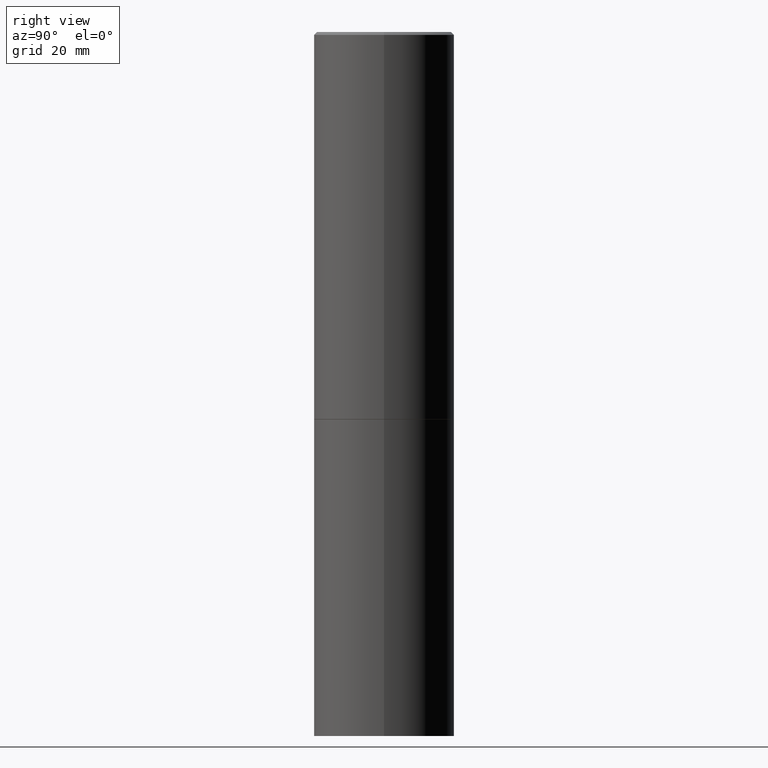
[diagram: clean part render]
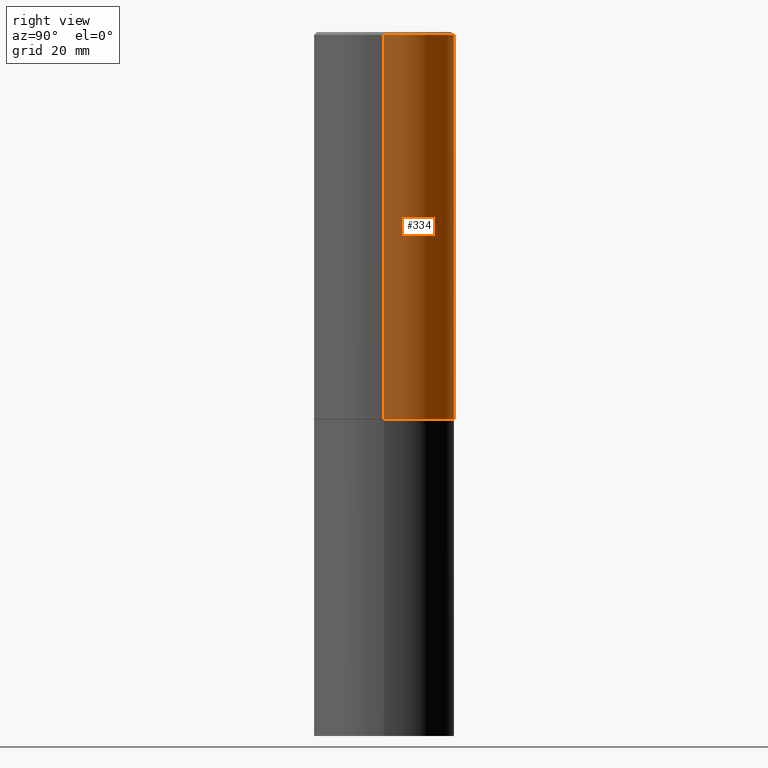
[diagram: same view with one face highlighted and labeled with its STEP entity id]
A machine part, right view. The second image highlights one B-rep face of the part: STEP entity #334.
In plain terms, the highlighted cylindrical surface (partial cylindrical patch) has radius 12.7 mm, axis along (-0, 0, 1).
Its self-contained STEP definition (entity closure, byte-faithful):
#26 = VECTOR ( 'NONE', #48, 39.37007874015748143 ) ;
#31 = CIRCLE ( 'NONE', #173, 0.4999999999999997224 ) ;
#40 = DIRECTION ( 'NONE',  ( 1.000000000000000000, -6.982962677686266711E-15, 0.000000000000000000 ) ) ;
#48 = DIRECTION ( 'NONE',  ( -2.445468806185136877E-29, 3.491481338843145188E-15, 1.000000000000000000 ) ) ;
#51 = VERTEX_POINT ( 'NONE', #114 ) ;
#73 = FACE_OUTER_BOUND ( 'NONE', #339, .T. ) ;
#92 = DIRECTION ( 'NONE',  ( 1.000000000000000000, -6.982962677686266711E-15, 0.000000000000000000 ) ) ;
#95 = LINE ( 'NONE', #302, #26 ) ;
#99 = DIRECTION ( 'NONE',  ( 1.000000000000000000, -6.982962677686267499E-15, 4.876176775795936353E-29 ) ) ;
#114 = CARTESIAN_POINT ( 'NONE',  ( -0.4999999999999997224, 3.421651712066268085E-15, -0.02000000000000011491 ) ) ;
#119 = CARTESIAN_POINT ( 'NONE',  ( -0.5000000000000000000, -1.281242234827833554E-15, -2.749000000000000110 ) ) ;
#133 = ORIENTED_EDGE ( 'NONE', *, *, #274, .T. ) ;
#142 = AXIS2_PLACEMENT_3D ( 'NONE', #352, #247, #40 ) ;
#150 = EDGE_CURVE ( 'NONE', #256, #51, #31, .T. ) ;
#151 = DIRECTION ( 'NONE',  ( -2.445468806185136597E-29, 3.491481338843145583E-15, 1.000000000000000000 ) ) ;
#156 = ORIENTED_EDGE ( 'NONE', *, *, #150, .F. ) ;
#157 = CARTESIAN_POINT ( 'NONE',  ( 0.4999999999999998335, -3.491481338843132566E-15, 2.438088387897967336E-29 ) ) ;
#173 = AXIS2_PLACEMENT_3D ( 'NONE', #178, #269, #92 ) ;
#178 = CARTESIAN_POINT ( 'NONE',  ( 4.890937612370302060E-31, -6.982962677686331052E-17, -0.02000000000000011491 ) ) ;
#221 = CYLINDRICAL_SURFACE ( 'NONE', #262, 0.4999999999999998335 ) ;
#225 = VERTEX_POINT ( 'NONE', #119 ) ;
#236 = EDGE_CURVE ( 'NONE', #273, #225, #296, .T. ) ;
#245 = CARTESIAN_POINT ( 'NONE',  ( 0.000000000000000000, 0.000000000000000000, 0.000000000000000000 ) ) ;
#247 = DIRECTION ( 'NONE',  ( -2.445468806185136597E-29, 3.491481338843145583E-15, 1.000000000000000000 ) ) ;
#249 = CARTESIAN_POINT ( 'NONE',  ( 0.4999999999999997224, -3.500078625662627502E-15, -0.02000000000000011491 ) ) ;
#256 = VERTEX_POINT ( 'NONE', #249 ) ;
#259 = ORIENTED_EDGE ( 'NONE', *, *, #236, .T. ) ;
#262 = AXIS2_PLACEMENT_3D ( 'NONE', #245, #151, #99 ) ;
#268 = VECTOR ( 'NONE', #337, 39.37007874015748143 ) ;
#269 = DIRECTION ( 'NONE',  ( -2.445468806185136597E-29, 3.491481338843145583E-15, 1.000000000000000000 ) ) ;
#271 = CARTESIAN_POINT ( 'NONE',  ( 0.5000000000000000000, -1.308956353932294179E-14, -2.749000000000000110 ) ) ;
#273 = VERTEX_POINT ( 'NONE', #271 ) ;
#274 = EDGE_CURVE ( 'NONE', #225, #51, #95, .T. ) ;
#287 = ORIENTED_EDGE ( 'NONE', *, *, #293, .F. ) ;
#293 = EDGE_CURVE ( 'NONE', #273, #256, #305, .T. ) ;
#296 = CIRCLE ( 'NONE', #142, 0.5000000000000000000 ) ;
#302 = CARTESIAN_POINT ( 'NONE',  ( -0.4999999999999998335, 3.552713678800499746E-15, -2.459467545127452330E-29 ) ) ;
#305 = LINE ( 'NONE', #157, #268 ) ;
#334 = ADVANCED_FACE ( 'NONE', ( #73 ), #221, .T. ) ;
#337 = DIRECTION ( 'NONE',  ( -2.445468806185136877E-29, 3.491481338843145188E-15, 1.000000000000000000 ) ) ;
#339 = EDGE_LOOP ( 'NONE', ( #259, #133, #156, #287 ) ) ;
#352 = CARTESIAN_POINT ( 'NONE',  ( 6.722593748202941159E-29, -9.598082200479808430E-15, -2.749000000000000110 ) ) ;